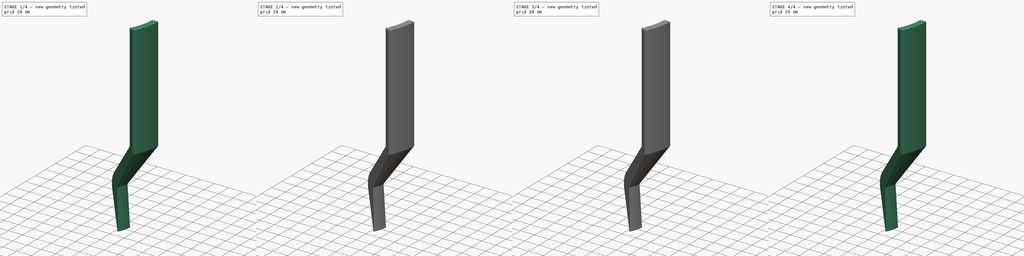
[diagram: build sequence overview — one tinted view per stage of 4, left to right]
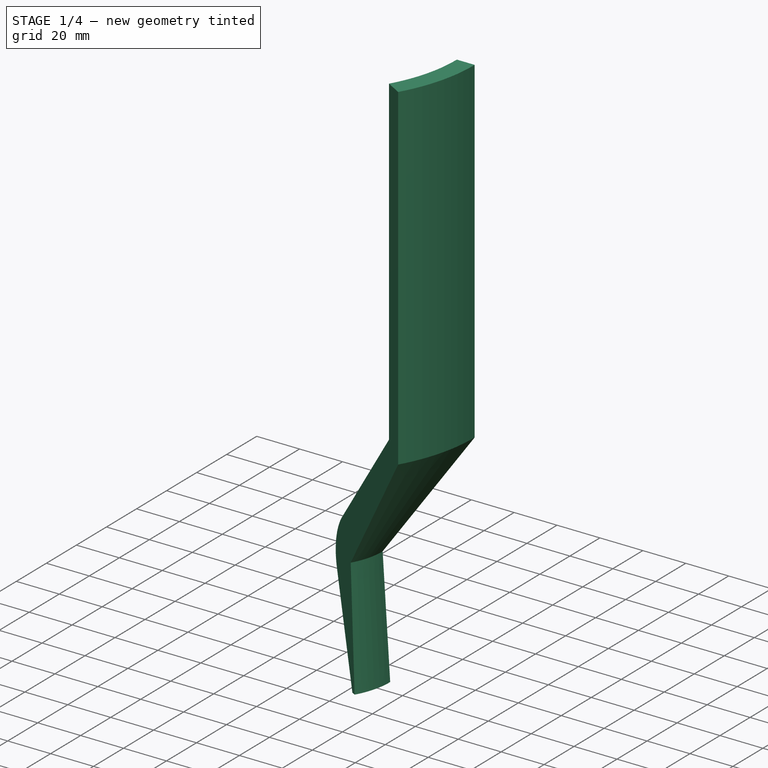
[diagram: stage 1 of 4 — iso view after this stage's code; geometry added in this stage tinted green]
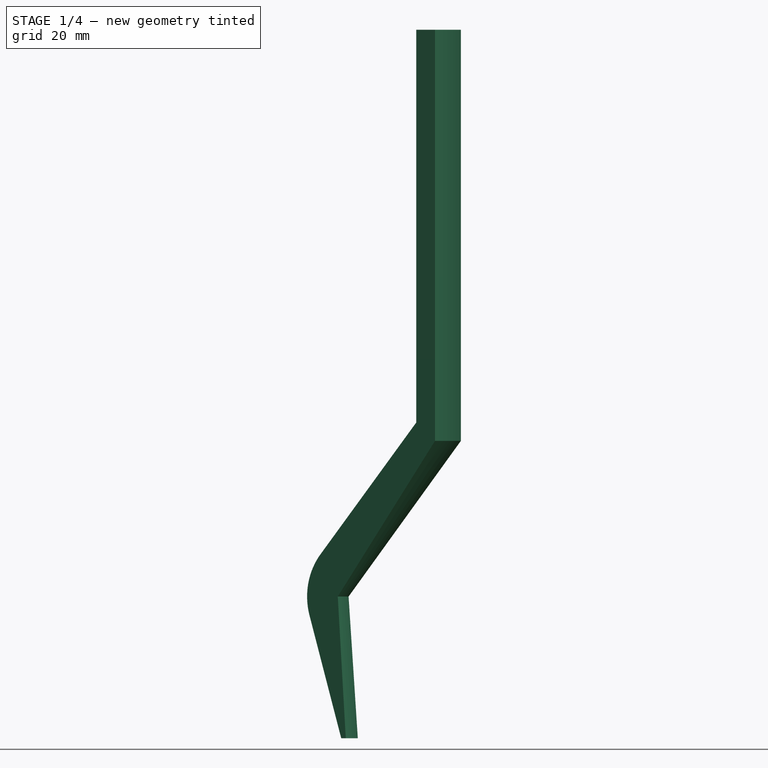
[diagram: stage 1 of 4 — front view after this stage's code; geometry added in this stage tinted green]
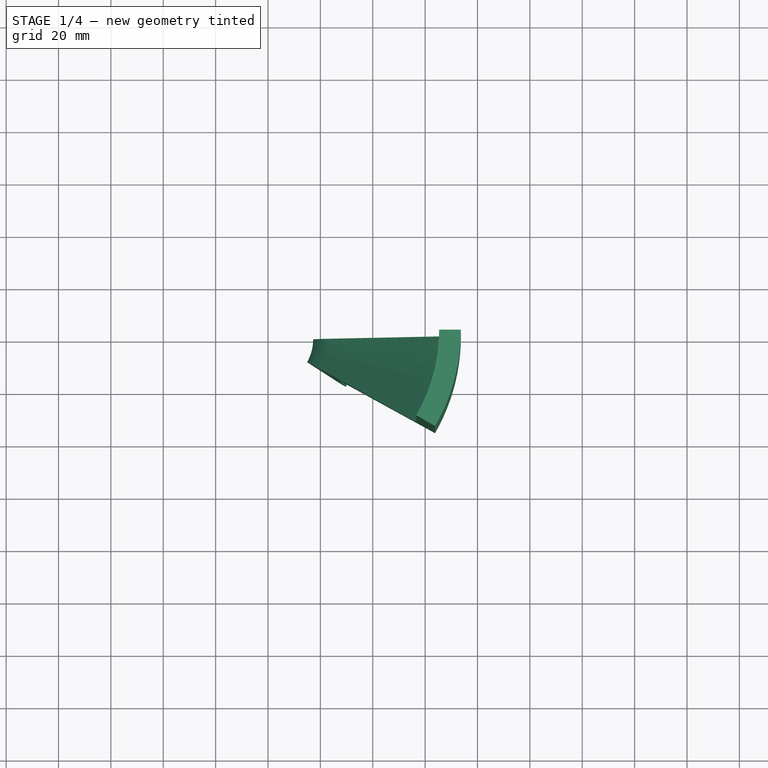
[diagram: stage 1 of 4 — top view after this stage's code; geometry added in this stage tinted green]
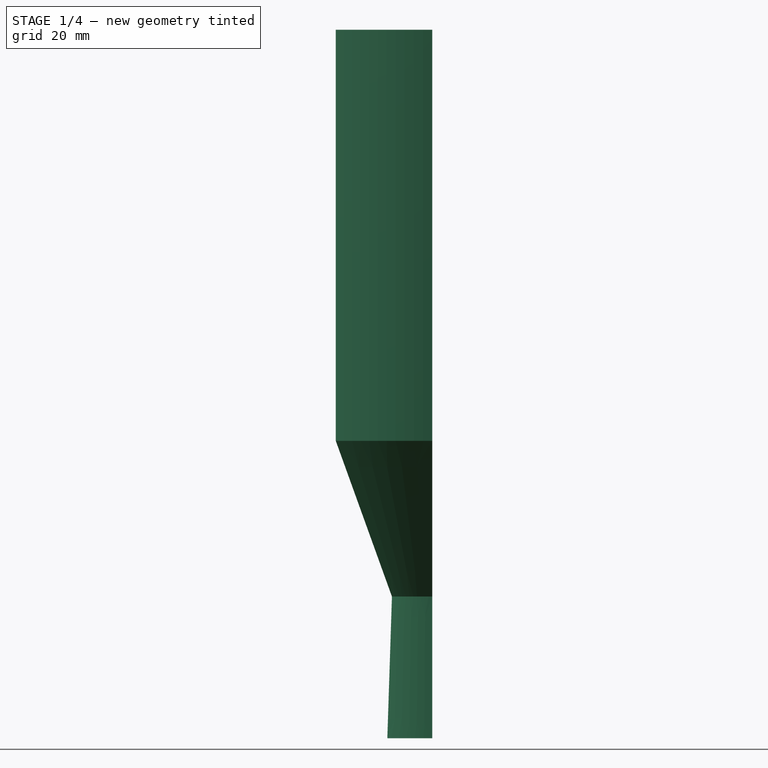
[diagram: stage 1 of 4 — right view after this stage's code; geometry added in this stage tinted green]
FCSTD DOCUMENT  (FreeCAD 1.0R39109 (Git))
Label: mlaznicaCFD
License: All rights reserved
LicenseURL: https://en.wikipedia.org/wiki/All_rights_reserved
objects: Sketcher::SketchObject×9, PartDesign::Groove×6, PartDesign::Plane×4, PartDesign::Revolution×3, PartDesign::Body×3, Spreadsheet::Sheet×1, PartDesign::Boolean×1
note: 54 computed .brp shape members not serialized (recipe doc carries the construction recipe); baked Part::Feature solids carry a one-line shape summary decoded from their .brp

FEATURE [PartDesign::Body] Body  label="volume-solid"
  AllowCompound = false
  Group = -> [Sketch,Revolution,DatumPlane,Sketch001,Groove,DatumPlane001,Sketch002,Groove001,Sketch004,Groove002]
  Origin = -> Origin
  Tip = -> Groove002
FEATURE [PartDesign::Plane] DatumPlane002
  AttachmentOffset = pos=(0,0,0) rot=(0,-1,0;0.054223rad)
  AttachmentSupport = -> [XZ_Plane001]
  Length = 62.8966
  MapMode = 5
  Placement = pos=(0,0,0) rot=(0.999265,-0.027098,-0.027098;1.57153rad)
  ResizeMode = 0
  Width = 60.2602
  expr: .AttachmentOffset.Rotation.Pitch = -Spreadsheet.C15 / 2
FEATURE [PartDesign::Plane] DatumPlane003
  AttachmentOffset = pos=(0,0,0) rot=(0,-1,0;0.316023rad)
  AttachmentSupport = -> [XZ_Plane001]
  Length = 74.294
  MapMode = 5
  Placement = pos=(0,0,0) rot=(0.975539,-0.155442,-0.155442;1.59556rad)
  ResizeMode = 0
  Width = 61.2306
  expr: .AttachmentOffset.Rotation.Pitch = -(Spreadsheet.C15 / 2 + Spreadsheet.C15 + Spreadsheet.C16)
FEATURE [Sketcher::SketchObject] Sketch005
  ArcFitTolerance = 1e-06
  AttachmentSupport = -> [XZ_Plane001]
  FullyConstrained = true
  MakeInternals = false
  MapMode = 5
  Placement = pos=(0,0,0) rot=(1,0,0;1.5708rad)
  expr: Constraints[18] = Spreadsheet.vanjski_promjer
  expr: Constraints[1] = Spreadsheet.promjer_grla_mlaznice
  expr: Constraints[22] = Spreadsheet.vanjski_promjer_grlo
  expr: Constraints[6] = Spreadsheet.unutarnji_promjer_komora
  sketch-geometry (10):
    g0: ArcOfCircle CenterX=42.2423 CenterY=54.12 CenterZ=0 NormalX=0 NormalY=0 NormalZ=1 AngleXU=0 Radius=25 StartAngle=2.44346 EndAngle=3.43132
    g1: LineSegment StartX=18.2843 StartY=46.9778 StartZ=0 EndX=32.2889 EndY=0 EndZ=0
    g2: LineSegment StartX=23.0912 StartY=70.1897 StartZ=0 EndX=65.3481 EndY=120.55 EndZ=0
    g3: LineSegment StartX=65.3481 StartY=120.55 StartZ=0 EndX=65.3481 EndY=270.55 EndZ=0
    g4: LineSegment StartX=65.3481 StartY=270.55 StartZ=0 EndX=73.6538 EndY=270.55 EndZ=0
    g5: LineSegment StartX=73.6538 StartY=270.55 StartZ=0 EndX=73.6538 EndY=113.58 EndZ=0
    g6: LineSegment [constr] StartX=65.3481 StartY=120.55 StartZ=0 EndX=73.6538 EndY=113.58 EndZ=0
    g7: LineSegment StartX=73.6538 StartY=113.58 StartZ=0 EndX=30.7669 EndY=54.12 EndZ=0
    g8: LineSegment StartX=30.7669 StartY=54.12 StartZ=0 EndX=34.2889 EndY=0 EndZ=0
    g9: LineSegment StartX=34.2889 StartY=0 StartZ=0 EndX=32.2889 EndY=0 EndZ=0
  constraints (28):
    c: Diameter(g0) = 50
    c: Distance(g0,g-2) = 17.2423
    c: Distance(g0,g-1) = 54.12
    c: Angle(g-2,g1) = 0.289725
    c: PointOnObject(g1,g-1)
    c: Angle(g2,g-2) = 0.698132
    c: DistanceX(g-1,g2) = 65.3481
    c: Tangent(g0,g1) = -1.5708
    c: Tangent(g0,g2) = 1.5708
    c: Coincident(g3,g2)
    c: Vertical(g3)
    c: Coincident(g4,g3)
    c: Horizontal(g4)
    c: Coincident(g5,g4)
    c: Vertical(g5)
    c: DistanceY(g3,g3) = 150
    c: Coincident(g6,g2)
    c: Perpendicular(g6,g2)
    c: Distance(g-2,g5) = 73.6538
    c: Coincident(g5,g6)
    c: Coincident(g7,g5)
    c: Distance(g7,g-1) = 54.12
    c: DistanceX(g-1,g7) = 30.7669
    c: Coincident(g8,g7)
    c: PointOnObject(g8,g-1)
    c: Coincident(g9,g8)
    c: Coincident(g9,g1)
    c: DistanceX(g9,g9) = 2
FEATURE [PartDesign::Revolution] Revolution001
  Angle = 30
  Angle2 = 60
  Axis = (0,2e-16,1)
  Base = (0,0,0)
  Placement = pos=(0,0,0) rot=(1,0,0;1.5708rad)
  Profile = -> Sketch005
  ReferenceAxis = -> Sketch005 [V_Axis]
  Refine = true
  Reversed = true
  Suppressed = false
  Type = 0
  expr: Angle = Spreadsheet.deg_grlo
FEATURE [PartDesign::Body] Body001
  AllowCompound = false
  Group = -> [Sketch005,Revolution001,DatumPlane002,Sketch006,Groove003,DatumPlane003,Sketch007,Groove004,Sketch008,Groove005]
  Origin = -> Origin001
  Tip = -> Groove005
FEATURE [Sketcher::SketchObject] Sketch009
  ArcFitTolerance = 1e-06
  AttachmentSupport = -> [XZ_Plane002]
  FullyConstrained = true
  MakeInternals = false
  MapMode = 5
  Placement = pos=(0,0,0) rot=(1,0,0;1.5708rad)
  expr: Constraints[18] = Spreadsheet.vanjski_promjer
  expr: Constraints[1] = Spreadsheet.promjer_grla_mlaznice
  expr: Constraints[22] = Spreadsheet.vanjski_promjer_grlo
  expr: Constraints[6] = Spreadsheet.unutarnji_promjer_komora
  sketch-geometry (10):
    g0: ArcOfCircle CenterX=42.2423 CenterY=54.12 CenterZ=0 NormalX=0 NormalY=0 NormalZ=1 AngleXU=0 Radius=25 StartAngle=2.44346 EndAngle=3.43132
    g1: LineSegment StartX=18.2843 StartY=46.9778 StartZ=0 EndX=32.2889 EndY=0 EndZ=0
    g2: LineSegment StartX=23.0912 StartY=70.1897 StartZ=0 EndX=65.3481 EndY=120.55 EndZ=0
    g3: LineSegment StartX=65.3481 StartY=120.55 StartZ=0 EndX=65.3481 EndY=270.55 EndZ=0
    g4: LineSegment StartX=65.3481 StartY=270.55 StartZ=0 EndX=73.6538 EndY=270.55 EndZ=0
    g5: LineSegment StartX=73.6538 StartY=270.55 StartZ=0 EndX=73.6538 EndY=113.58 EndZ=0
    g6: LineSegment [constr] StartX=65.3481 StartY=120.55 StartZ=0 EndX=73.6538 EndY=113.58 EndZ=0
    g7: LineSegment StartX=73.6538 StartY=113.58 StartZ=0 EndX=30.7669 EndY=54.12 EndZ=0
    g8: LineSegment StartX=30.7669 StartY=54.12 StartZ=0 EndX=34.2889 EndY=0 EndZ=0
    g9: LineSegment StartX=34.2889 StartY=0 StartZ=0 EndX=32.2889 EndY=0 EndZ=0
  constraints (28):
    c: Diameter(g0) = 50
    c: Distance(g0,g-2) = 17.2423
    c: Distance(g0,g-1) = 54.12
    c: Angle(g-2,g1) = 0.289725
    c: PointOnObject(g1,g-1)
    c: Angle(g2,g-2) = 0.698132
    c: DistanceX(g-1,g2) = 65.3481
    c: Tangent(g0,g1) = -1.5708
    c: Tangent(g0,g2) = 1.5708
    c: Coincident(g3,g2)
    c: Vertical(g3)
    c: Coincident(g4,g3)
    c: Horizontal(g4)
    c: Coincident(g5,g4)
    c: Vertical(g5)
    c: DistanceY(g3,g3) = 150
    c: Coincident(g6,g2)
    c: Perpendicular(g6,g2)
    c: Distance(g-2,g5) = 73.6538
    c: Coincident(g5,g6)
    c: Coincident(g7,g5)
    c: Distance(g7,g-1) = 54.12
    c: DistanceX(g-1,g7) = 30.7669
    c: Coincident(g8,g7)
    c: PointOnObject(g8,g-1)
    c: Coincident(g9,g8)
    c: Coincident(g9,g1)
    c: DistanceX(g9,g9) = 2
FEATURE [PartDesign::Revolution] Revolution002
  Angle = 30
  Angle2 = 60
  Axis = (0,2e-16,1)
  Base = (0,0,0)
  Placement = pos=(0,0,0) rot=(1,0,0;1.5708rad)
  Profile = -> Sketch009
  ReferenceAxis = -> Sketch009 [V_Axis]
  Refine = true
  Reversed = true
  Suppressed = false
  Type = 0
  expr: Angle = Spreadsheet.deg_grlo
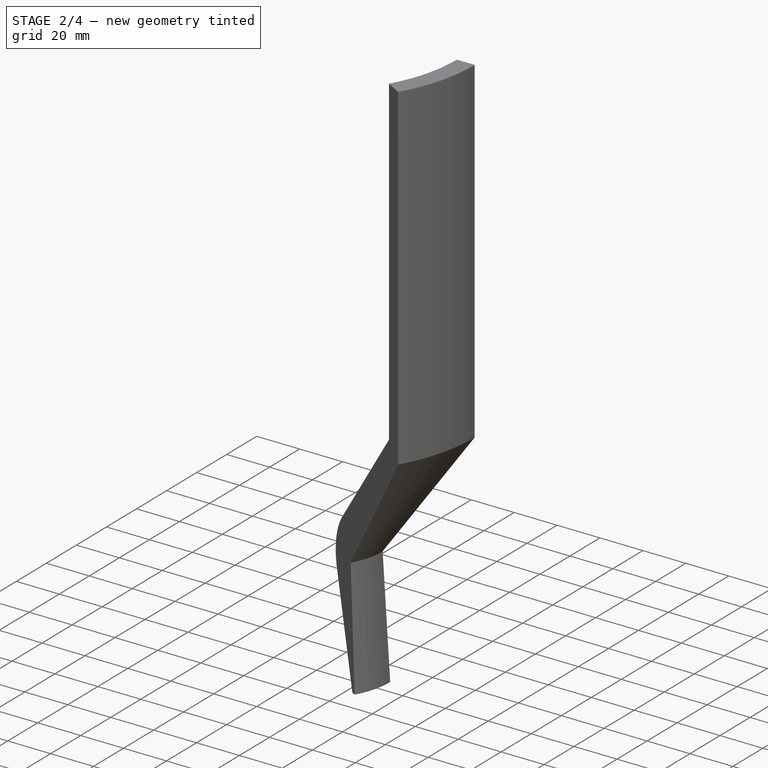
[diagram: stage 2 of 4 — iso view after this stage's code; geometry added in this stage tinted green]
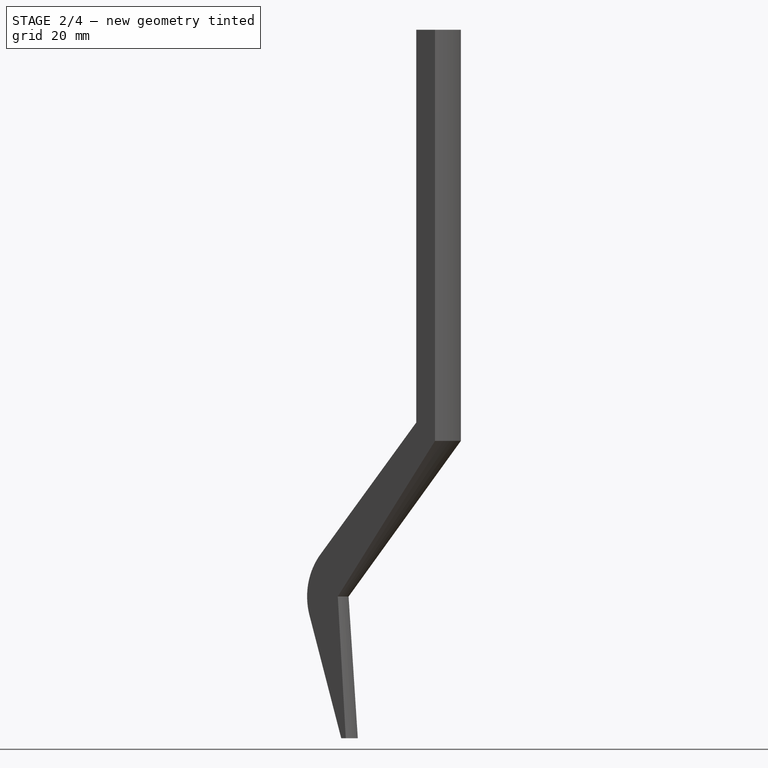
[diagram: stage 2 of 4 — front view after this stage's code; geometry added in this stage tinted green]
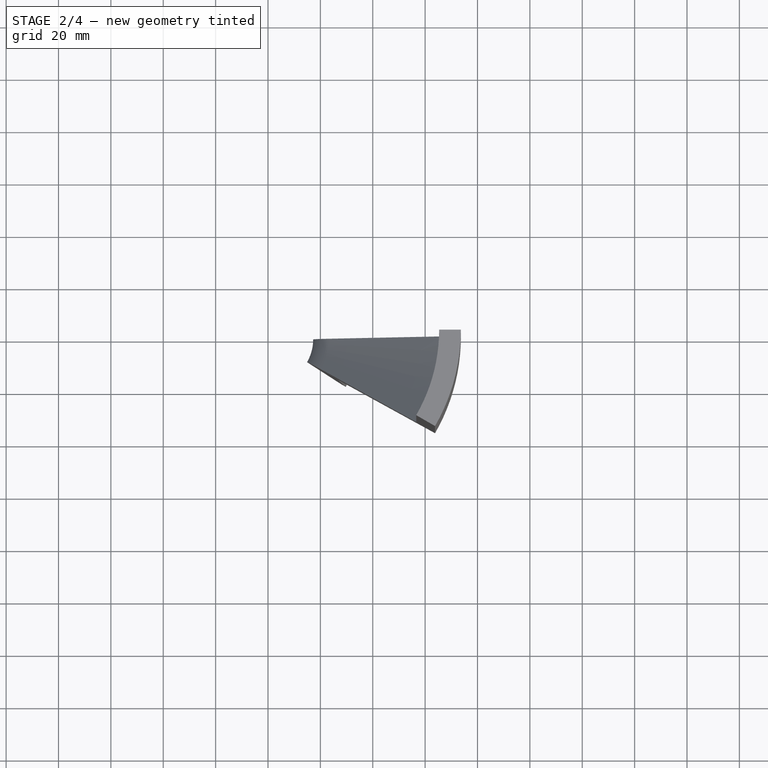
[diagram: stage 2 of 4 — top view after this stage's code; geometry added in this stage tinted green]
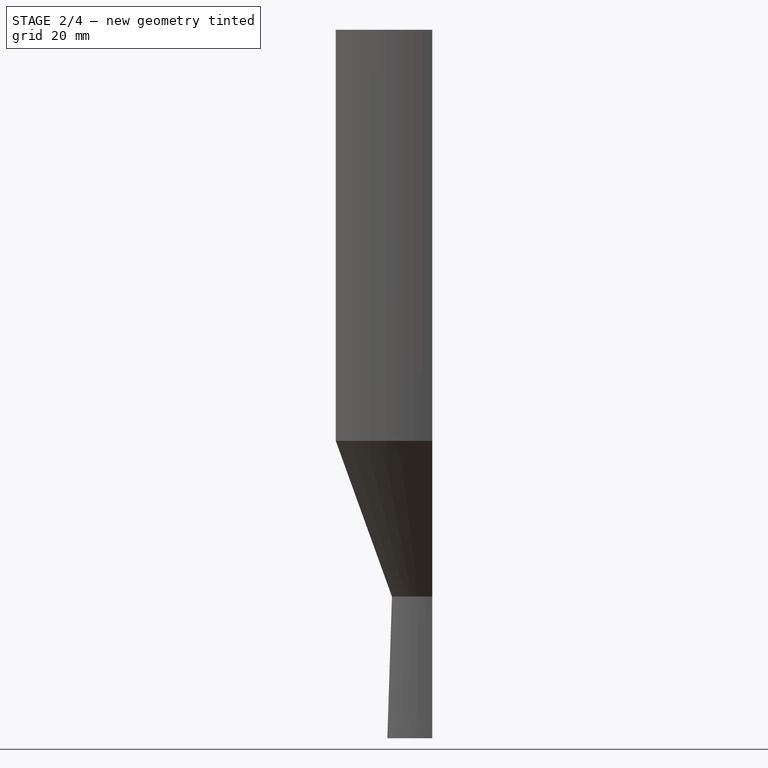
[diagram: stage 2 of 4 — right view after this stage's code; geometry added in this stage tinted green]
FEATURE [Sketcher::SketchObject] Sketch006
  ArcFitTolerance = 1e-06
  AttachmentSupport = -> [DatumPlane002]
  FullyConstrained = false
  MakeInternals = false
  MapMode = 5
  Placement = pos=(0,0,0) rot=(0.999265,-0.027098,-0.027098;1.57153rad)
  expr: Constraints[16] = Spreadsheet.C11
  expr: Constraints[21] = Spreadsheet.C10
  expr: Constraints[24] = Spreadsheet.unutarnji_promjer_komora
  expr: Constraints[7] = Spreadsheet.C4
  expr: Constraints[8] = Spreadsheet.C3
  expr: Constraints[9] = 50 - 2 * (Spreadsheet.C10 - Spreadsheet.C9)
  sketch-geometry (11):
    g0: LineSegment StartX=70.7638 StartY=333 StartZ=0 EndX=70.7638 EndY=123.405 EndZ=0
    g1: LineSegment StartX=70.7638 StartY=333 StartZ=0 EndX=66.8881 EndY=333 EndZ=0
    g2: LineSegment StartX=66.8881 StartY=333 StartZ=0 EndX=66.8881 EndY=126.328 EndZ=0
    g3: ArcOfCircle CenterX=42.2423 CenterY=54.12 CenterZ=0 NormalX=0 NormalY=0 NormalZ=1 AngleXU=0 Radius=23.8 StartAngle=2.49544 EndAngle=3.14159
    g4: LineSegment StartX=70.7638 StartY=123.405 StartZ=0 EndX=29.5569 EndY=54.12 EndZ=0
    g5: LineSegment StartX=66.8881 StartY=126.328 StartZ=0 EndX=23.2402 EndY=68.4503 EndZ=0
    g6: LineSegment [constr] StartX=66.8881 StartY=126.328 StartZ=0 EndX=70.7638 EndY=123.405 EndZ=0
    g7: LineSegment StartX=29.5569 StartY=54.12 StartZ=0 EndX=18.4423 EndY=54.12 EndZ=0
    g8: LineSegment [constr] StartX=65.3481 StartY=277.62 StartZ=0 EndX=65.3481 EndY=127.62 EndZ=0
    g9: LineSegment [constr] StartX=65.3481 StartY=127.62 StartZ=0 EndX=41.635 EndY=99.3598 EndZ=0
    g10: LineSegment [constr] StartX=65.3481 StartY=127.62 StartZ=0 EndX=80.0046 EndY=115.322 EndZ=0
  constraints (32):
    c: Vertical(g0)
    c: Coincident(g1,g0)
    c: Horizontal(g1)
    c: Coincident(g2,g1)
    c: Vertical(g2)
    c: Coincident(g4,g0)
    c: Coincident(g5,g2)
    c: Distance(g-2,g2) = 66.8881
    c: Distance(g-2,g0) = 70.7638
    c: Diameter(g3) = 47.6
    c: Distance(g3,g-1) = 54.12
    c: DistanceY(g-1,g4) = 54.12
    c: Coincident(g6,g2)
    c: Perpendicular(g5,g6)
    c: PointOnObject(g0,g6)
    c: PointOnObject(g6,g4)
    c: DistanceX(g-1,g4) = 29.5569
    c: Coincident(g7,g4)
    c: Horizontal(g7)
    c: Tangent(g3,g5) = -1.5708
    c: Coincident(g3,g7)
    c: Distance(g3,g-2) = 18.4423
    c: Vertical(g8)
    c: DistanceY(g-1,g8) = 277.62
    c: Distance(g-2,g8) = 65.3481
    c: DistanceY(g8,g8) = 150
    c: Coincident(g9,g8)
    c: Angle(g9,g-2) = 0.698132
    c: Coincident(g10,g8)
    c: Perpendicular(g9,g10)
    c: PointOnObject(g2,g10)
    c: Distance(g-1,g1) = 333
FEATURE [PartDesign::Groove] Groove003
  Angle = 8.78649
  Angle2 = 60
  Axis = (0,-2e-16,1)
  Base = (0,0,0)
  BaseFeature = -> Revolution001
  Placement = pos=(0,0,0) rot=(1,0,0;1.5708rad)
  Profile = -> Sketch006
  ReferenceAxis = -> Sketch006 [V_Axis]
  Refine = true
  Reversed = true
  Suppressed = false
  Type = 0
  expr: Angle = Spreadsheet.C16
FEATURE [Sketcher::SketchObject] Sketch007
  ArcFitTolerance = 1e-06
  AttachmentSupport = -> [DatumPlane003]
  FullyConstrained = false
  MakeInternals = false
  MapMode = 5
  Placement = pos=(0,0,0) rot=(0.975539,-0.155442,-0.155442;1.59556rad)
  expr: Constraints[12] = 50 - 2 * (Spreadsheet.C10 - Spreadsheet.C9)
  expr: Constraints[13] = Spreadsheet.C11
  expr: Constraints[14] = Spreadsheet.C4
  expr: Constraints[15] = Spreadsheet.C3
  expr: Constraints[20] = Spreadsheet.C10
  expr: Constraints[22] = Spreadsheet.C5
  expr: Constraints[32] = Spreadsheet.C9
  sketch-geometry (14):
    g0: ArcOfCircle CenterX=42.2423 CenterY=54.12 CenterZ=0 NormalX=0 NormalY=0 NormalZ=1 AngleXU=0 Radius=23.8 StartAngle=2.49544 EndAngle=3.14159
    g1: LineSegment StartX=23.2402 StartY=68.4503 StartZ=0 EndX=66.8881 EndY=126.328 EndZ=0
    g2: LineSegment StartX=66.8881 StartY=126.328 StartZ=0 EndX=66.8881 EndY=333 EndZ=0
    g3: LineSegment StartX=66.8881 StartY=333 StartZ=0 EndX=70.7638 EndY=333 EndZ=0
    g4: LineSegment StartX=70.7638 StartY=333 StartZ=0 EndX=70.7638 EndY=123.405 EndZ=0
    g5: LineSegment StartX=70.7638 StartY=123.405 StartZ=0 EndX=29.5569 EndY=54.12 EndZ=0
    g6: LineSegment [constr] StartX=66.8881 StartY=126.328 StartZ=0 EndX=70.7638 EndY=123.405 EndZ=0
    g7: LineSegment StartX=29.5569 StartY=54.12 StartZ=0 EndX=18.4423 EndY=54.12 EndZ=0
    g8: LineSegment [constr] StartX=65.3481 StartY=277.62 StartZ=0 EndX=65.3481 EndY=127.62 EndZ=0
    g9: LineSegment [constr] StartX=65.3481 StartY=127.62 StartZ=0 EndX=48.5294 EndY=107.576 EndZ=0
    g10: LineSegment [constr] StartX=65.3481 StartY=127.62 StartZ=0 EndX=86.376 EndY=109.975 EndZ=0
    g11: ArcOfCircle [constr] CenterX=42.2423 CenterY=54.12 CenterZ=0 NormalX=0 NormalY=0 NormalZ=1 AngleXU=0 Radius=25 StartAngle=2.49544 EndAngle=8.46754
    g12: LineSegment [constr] StartX=23.2402 StartY=68.4503 StartZ=0 EndX=22.2821 EndY=69.1729 EndZ=0
    g13: LineSegment [constr] StartX=18.4423 StartY=54.12 StartZ=0 EndX=17.2423 EndY=54.12 EndZ=0
  constraints (41):
    c: Coincident(g2,g1)
    c: Vertical(g2)
    c: Coincident(g3,g2)
    c: Horizontal(g3)
    c: Coincident(g4,g3)
    c: Vertical(g4)
    c: Coincident(g5,g4)
    c: Coincident(g6,g1)
    c: Perpendicular(g1,g6)
    c: Coincident(g6,g4)
    c: DistanceY(g-1,g0) = 54.12
    c: DistanceY(g-1,g5) = 54.12
    c: Diameter(g0) = 47.6
    c: DistanceX(g-1,g5) = 29.5569
    c: Distance(g-2,g2) = 66.8881
    c: Distance(g-2,g4) = 70.7638
    c: Coincident(g7,g5)
    c: Horizontal(g7)
    c: Coincident(g0,g7)
    c: Tangent(g0,g1) = 1.5708
    c: Distance(g0,g-2) = 18.4423
    c: Vertical(g8)
    c: Distance(g-2,g8) = 65.3481
    c: DistanceY(g-1,g8) = 277.62
    c: DistanceY(g8,g8) = 150
    c: Distance(g-1,g3) = 333
    c: Coincident(g9,g8)
    c: Angle(g9,g-2) = 0.698132
    c: Coincident(g10,g8)
    c: Perpendicular(g10,g9)
    c: PointOnObject(g1,g10)
    c: DistanceY(g-1,g11) = 54.12
    c: Distance(g11,g-2) = 17.2423
    c: Diameter(g11) = 50
    c: Coincident(g12,g0)
    c: Perpendicular(g12,g1)
    c: PointOnObject(g11,g1)
    c: Coincident(g12,g11)
    c: Coincident(g13,g0)
    c: Horizontal(g13)
    c: PointOnObject(g13,g11)
FEATURE [PartDesign::Groove] Groove004
  Angle = 8.78649
  Angle2 = 60
  Axis = (0,0,1)
  Base = (0,0,0)
  BaseFeature = -> Groove003
  Placement = pos=(0,0,0) rot=(1,0,0;1.5708rad)
  Profile = -> Sketch007
  ReferenceAxis = -> Sketch007 [V_Axis]
  Refine = true
  Reversed = true
  Suppressed = false
  Type = 0
  expr: Angle = Spreadsheet.C17
FEATURE [Sketcher::SketchObject] Sketch008
  ArcFitTolerance = 1e-06
  AttachmentSupport = -> [DatumPlane003]
  FullyConstrained = false
  MakeInternals = false
  MapMode = 5
  Placement = pos=(0,0,0) rot=(0.975539,-0.155442,-0.155442;1.59556rad)
  expr: Constraints[0] = 50 - 2 * (Spreadsheet.C10 - Spreadsheet.C9)
  expr: Constraints[12] = Spreadsheet.C3
  expr: Constraints[13] = Spreadsheet.C10
  expr: Constraints[21] = Spreadsheet.C3
  expr: Constraints[22] = Spreadsheet.C4
  expr: Constraints[28] = Spreadsheet.C19
  expr: Constraints[3] = Spreadsheet.C11
  expr: Constraints[9] = Spreadsheet.C5
  sketch-geometry (9):
    g0: ArcOfCircle CenterX=42.2423 CenterY=54.12 CenterZ=0 NormalX=0 NormalY=0 NormalZ=1 AngleXU=0 Radius=23.8 StartAngle=2.9075 EndAngle=3.14159
    g1: LineSegment StartX=29.5569 StartY=54.12 StartZ=0 EndX=32.8559 EndY=59.6406 EndZ=0
    g2: LineSegment [constr] StartX=65.3481 StartY=277.62 StartZ=0 EndX=65.3481 EndY=127.62 EndZ=0
    g3: LineSegment [constr] StartX=65.3481 StartY=127.62 StartZ=0 EndX=47.0094 EndY=105.765 EndZ=0
    g4: LineSegment [constr] StartX=65.3481 StartY=127.62 StartZ=0 EndX=70.7638 EndY=123.076 EndZ=0
    g5: LineSegment StartX=29.5569 StartY=54.12 StartZ=0 EndX=18.4423 EndY=54.12 EndZ=0
    g6: LineSegment [constr] StartX=16.6753 StartY=59.7453 StartZ=0 EndX=66.8881 EndY=126.328 EndZ=0
    g7: LineSegment [constr] StartX=70.7638 StartY=123.076 StartZ=0 EndX=29.5569 EndY=54.12 EndZ=0
    g8: LineSegment StartX=19.0914 StartY=59.6406 StartZ=0 EndX=32.8559 EndY=59.6406 EndZ=0
  constraints (29):
    c: Diameter(g0) = 47.6
    c: DistanceY(g-1,g0) = 54.12
    c: DistanceY(g-1,g1) = 54.12
    c: Distance(g1,g-2) = 29.5569
    c: Vertical(g2)
    c: Coincident(g3,g2)
    c: DistanceY(g-1,g2) = 277.62
    c: DistanceY(g2,g2) = 150
    c: Angle(g3,g-2) = 0.698132
    c: Distance(g-2,g2) = 65.3481
    c: Coincident(g4,g2)
    c: Perpendicular(g3,g4)
    c: Distance(g4,g-2) = 70.7638
    c: Distance(g0,g-2) = 18.4423
    c: Coincident(g5,g1)
    c: Coincident(g5,g0)
    c: Horizontal(g5)
    c: Distance(g3,g3) = 28.53
    c: PointOnObject(g6,g4)
    c: PointOnObject(g7,g4)
    c: Coincident(g7,g1)
    c: DistanceX(g-1,g7) = 70.7638
    c: DistanceX(g-1,g6) = 66.8881
    c: Tangent(g0,g6)
    c: Parallel(g7,g1)
    c: Horizontal(g8)
    c: Coincident(g8,g1)
    c: Coincident(g8,g0)
    c: Distance(g5,g8) = 5.52062
FEATURE [PartDesign::Groove] Groove005
  Angle = 6.21351
  Angle2 = 60
  Axis = (0,0,1)
  Base = (0,0,0)
  BaseFeature = -> Groove004
  Placement = pos=(0,0,0) rot=(1,0,0;1.5708rad)
  Profile = -> Sketch008
  ReferenceAxis = -> Sketch008 [V_Axis]
  Refine = true
  Suppressed = false
  Type = 0
  expr: Angle = Spreadsheet.C15
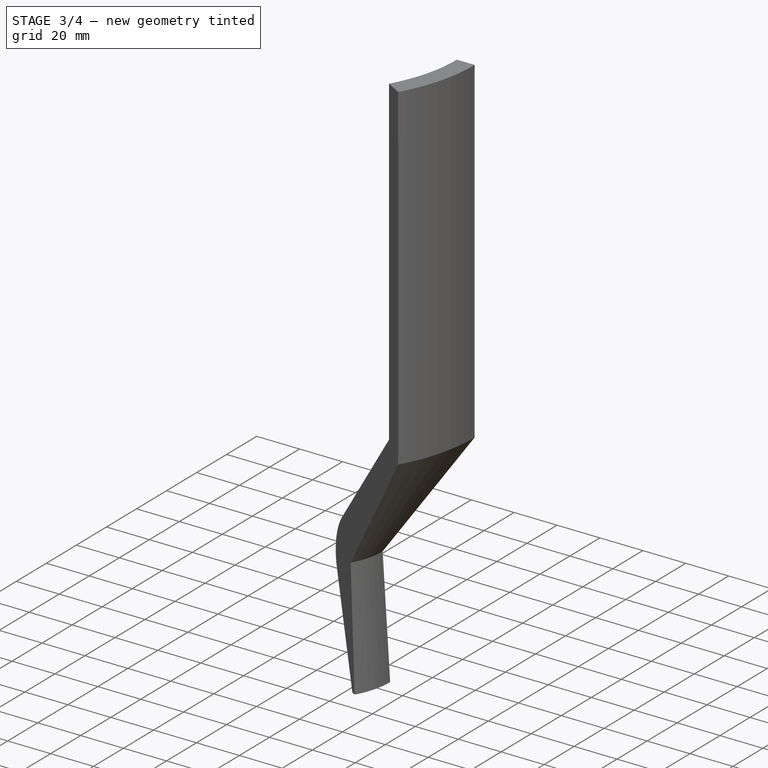
[diagram: stage 3 of 4 — iso view after this stage's code; geometry added in this stage tinted green]
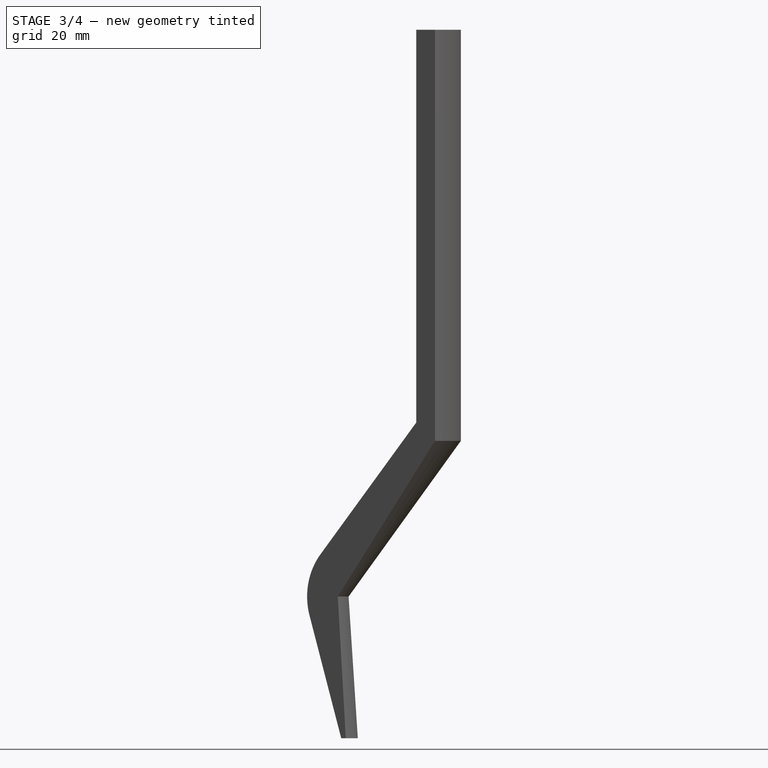
[diagram: stage 3 of 4 — front view after this stage's code; geometry added in this stage tinted green]
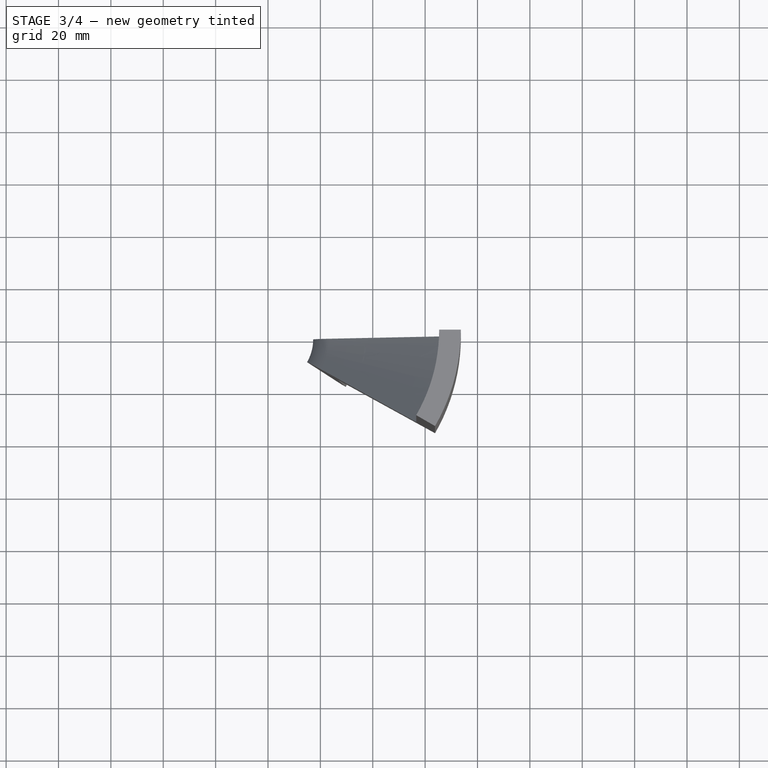
[diagram: stage 3 of 4 — top view after this stage's code; geometry added in this stage tinted green]
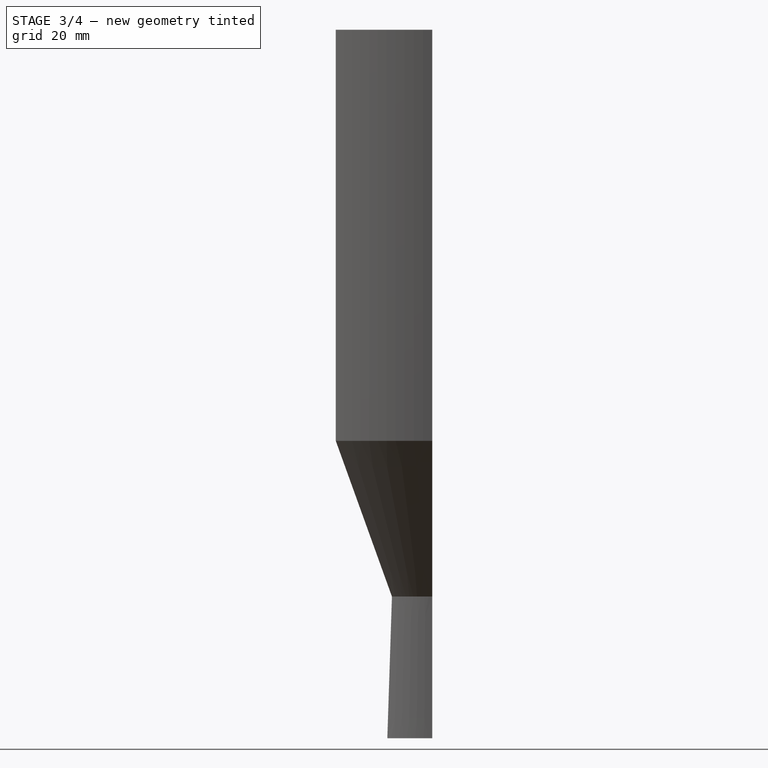
[diagram: stage 3 of 4 — right view after this stage's code; geometry added in this stage tinted green]
FEATURE [Sketcher::SketchObject] Sketch
  ArcFitTolerance = 1e-06
  AttachmentSupport = -> [XZ_Plane]
  FullyConstrained = true
  MakeInternals = false
  MapMode = 5
  Placement = pos=(0,0,0) rot=(1,0,0;1.5708rad)
  expr: Constraints[18] = Spreadsheet.vanjski_promjer
  expr: Constraints[1] = Spreadsheet.promjer_grla_mlaznice
  expr: Constraints[22] = Spreadsheet.vanjski_promjer_grlo
  expr: Constraints[6] = Spreadsheet.unutarnji_promjer_komora
  sketch-geometry (10):
    g0: ArcOfCircle CenterX=42.2423 CenterY=54.12 CenterZ=0 NormalX=0 NormalY=0 NormalZ=1 AngleXU=0 Radius=25 StartAngle=2.44346 EndAngle=3.43132
    g1: LineSegment StartX=18.2843 StartY=46.9778 StartZ=0 EndX=32.2889 EndY=0 EndZ=0
    g2: LineSegment StartX=23.0912 StartY=70.1897 StartZ=0 EndX=65.3481 EndY=120.55 EndZ=0
    g3: LineSegment StartX=65.3481 StartY=120.55 StartZ=0 EndX=65.3481 EndY=270.55 EndZ=0
    g4: LineSegment StartX=65.3481 StartY=270.55 StartZ=0 EndX=73.6538 EndY=270.55 EndZ=0
    g5: LineSegment StartX=73.6538 StartY=270.55 StartZ=0 EndX=73.6538 EndY=113.58 EndZ=0
    g6: LineSegment [constr] StartX=65.3481 StartY=120.55 StartZ=0 EndX=73.6538 EndY=113.58 EndZ=0
    g7: LineSegment StartX=73.6538 StartY=113.58 StartZ=0 EndX=30.7669 EndY=54.12 EndZ=0
    g8: LineSegment StartX=30.7669 StartY=54.12 StartZ=0 EndX=34.2889 EndY=0 EndZ=0
    g9: LineSegment StartX=34.2889 StartY=0 StartZ=0 EndX=32.2889 EndY=0 EndZ=0
  constraints (28):
    c: Diameter(g0) = 50
    c: Distance(g0,g-2) = 17.2423
    c: Distance(g0,g-1) = 54.12
    c: Angle(g-2,g1) = 0.289725
    c: PointOnObject(g1,g-1)
    c: Angle(g2,g-2) = 0.698132
    c: DistanceX(g-1,g2) = 65.3481
    c: Tangent(g0,g1) = -1.5708
    c: Tangent(g0,g2) = 1.5708
    c: Coincident(g3,g2)
    c: Vertical(g3)
    c: Coincident(g4,g3)
    c: Horizontal(g4)
    c: Coincident(g5,g4)
    c: Vertical(g5)
    c: DistanceY(g3,g3) = 150
    c: Coincident(g6,g2)
    c: Perpendicular(g6,g2)
    c: Distance(g-2,g5) = 73.6538
    c: Coincident(g5,g6)
    c: Coincident(g7,g5)
    c: Distance(g7,g-1) = 54.12
    c: DistanceX(g-1,g7) = 30.7669
    c: Coincident(g8,g7)
    c: PointOnObject(g8,g-1)
    c: Coincident(g9,g8)
    c: Coincident(g9,g1)
    c: DistanceX(g9,g9) = 2
FEATURE [Spreadsheet::Sheet] Spreadsheet
  cells = B1='dizajn komore; A2=147.307500414543; B2='D_inlet; C2(vanjski_promjer)==A2 / 2; A3=141.527500414543; B3='D_ulaz_mlaznice; C3(D_ulaz_mlaznice)==A3 / 2; A4=133.776211869789; B4='d_cooling_channels_inlet; C4(d_ulaz_mlaznice)==A4 / 2; A5=130.696211869789; B5='combustion_chamber_diameter; C5(unutarnji_promjer_komora)==A5 / 2; B8='dizajn grla; A9=34.4846319627967; B9='promjer_grla_mlaznice; C9(promjer_grla_mlaznice)==A9 / 2; A10=36.8846319627967; B10='d_cooling_channels_throat; C10(unutarnja_stjenka_rashladnih_kanala)==A10 / 2; A11=59.1137427878577; B11='D_cooling_channels_throat; C11(d_vani_grlo)==A11 / 2; A12=61.5337427878577; B12='D_throat; C12(vanjski_promjer_grlo)==A12 / 2; B14='fi_revolve; C14(deg_grlo)=30; B15='fi_alu_stupnjevi; C15(fi_alu_stupnjevi_ulaz_mlaznice)=6.21351239951349; B16='fi_inlet_stupnjevi_ulaz; C16(fi_IPA_ulaz_deg)=8.7864876004865; B17='fi_inlet_stupnjevi_izlaz; C17(fi_IPA_izlaz_gore_deg)=8.7864876004865; B19='channel_height; C19=5.52061951540136; B21='nozzle contours; A22=45; B22='CONVERGENT_NOZZLE_ANGLE; A23=16.6; B23='DIVERGENT_NOZZLE_ANGLE; A24=144.835454243746; B24='Combustion_Chamber_Height; A25=43.5617373815162; B25='Divergent_Nozzle_Length; A26=43.1057899534959; B26='Convergent_Nozzle_Length
FEATURE [PartDesign::Revolution] Revolution
  Angle = 30
  Angle2 = 60
  Axis = (0,2e-16,1)
  Base = (0,0,0)
  Placement = pos=(0,0,0) rot=(1,0,0;1.5708rad)
  Profile = -> Sketch
  ReferenceAxis = -> Sketch [V_Axis]
  Refine = true
  Reversed = true
  Suppressed = false
  Type = 0
  expr: Angle = Spreadsheet.deg_grlo
FEATURE [PartDesign::Plane] DatumPlane
  AttachmentOffset = pos=(0,0,0) rot=(0,-1,0;0.054223rad)
  AttachmentSupport = -> [XZ_Plane]
  Length = 136.561
  MapMode = 5
  Placement = pos=(0,0,0) rot=(0.999265,-0.027098,-0.027098;1.57153rad)
  ResizeMode = 0
  Width = 330.251
  expr: .AttachmentOffset.Rotation.Pitch = -Spreadsheet.C15 / 2
FEATURE [Sketcher::SketchObject] Sketch001
  ArcFitTolerance = 1e-06
  AttachmentSupport = -> [DatumPlane]
  FullyConstrained = false
  MakeInternals = false
  MapMode = 5
  Placement = pos=(0,0,0) rot=(0.999265,-0.027098,-0.027098;1.57153rad)
  expr: Constraints[16] = Spreadsheet.C11
  expr: Constraints[21] = Spreadsheet.C10
  expr: Constraints[24] = Spreadsheet.unutarnji_promjer_komora
  expr: Constraints[7] = Spreadsheet.C4
  expr: Constraints[8] = Spreadsheet.C3
  expr: Constraints[9] = 50 - 2 * (Spreadsheet.C10 - Spreadsheet.C9)
  sketch-geometry (11):
    g0: LineSegment StartX=70.7638 StartY=333 StartZ=0 EndX=70.7638 EndY=123.405 EndZ=0
    g1: LineSegment StartX=70.7638 StartY=333 StartZ=0 EndX=66.8881 EndY=333 EndZ=0
    g2: LineSegment StartX=66.8881 StartY=333 StartZ=0 EndX=66.8881 EndY=126.328 EndZ=0
    g3: ArcOfCircle CenterX=42.2423 CenterY=54.12 CenterZ=0 NormalX=0 NormalY=0 NormalZ=1 AngleXU=0 Radius=23.8 StartAngle=2.49544 EndAngle=3.14159
    g4: LineSegment StartX=70.7638 StartY=123.405 StartZ=0 EndX=29.5569 EndY=54.12 EndZ=0
    g5: LineSegment StartX=66.8881 StartY=126.328 StartZ=0 EndX=23.2402 EndY=68.4503 EndZ=0
    g6: LineSegment [constr] StartX=66.8881 StartY=126.328 StartZ=0 EndX=70.7638 EndY=123.405 EndZ=0
    g7: LineSegment StartX=29.5569 StartY=54.12 StartZ=0 EndX=18.4423 EndY=54.12 EndZ=0
    g8: LineSegment [constr] StartX=65.3481 StartY=277.62 StartZ=0 EndX=65.3481 EndY=127.62 EndZ=0
    g9: LineSegment [constr] StartX=65.3481 StartY=127.62 StartZ=0 EndX=41.635 EndY=99.3598 EndZ=0
    g10: LineSegment [constr] StartX=65.3481 StartY=127.62 StartZ=0 EndX=80.0046 EndY=115.322 EndZ=0
  constraints (32):
    c: Vertical(g0)
    c: Coincident(g1,g0)
    c: Horizontal(g1)
    c: Coincident(g2,g1)
    c: Vertical(g2)
    c: Coincident(g4,g0)
    c: Coincident(g5,g2)
    c: Distance(g-2,g2) = 66.8881
    c: Distance(g-2,g0) = 70.7638
    c: Diameter(g3) = 47.6
    c: Distance(g3,g-1) = 54.12
    c: DistanceY(g-1,g4) = 54.12
    c: Coincident(g6,g2)
    c: Perpendicular(g5,g6)
    c: PointOnObject(g0,g6)
    c: PointOnObject(g6,g4)
    c: DistanceX(g-1,g4) = 29.5569
    c: Coincident(g7,g4)
    c: Horizontal(g7)
    c: Tangent(g3,g5) = -1.5708
    c: Coincident(g3,g7)
    c: Distance(g3,g-2) = 18.4423
    c: Vertical(g8)
    c: DistanceY(g-1,g8) = 277.62
    c: Distance(g-2,g8) = 65.3481
    c: DistanceY(g8,g8) = 150
    c: Coincident(g9,g8)
    c: Angle(g9,g-2) = 0.698132
    c: Coincident(g10,g8)
    c: Perpendicular(g9,g10)
    c: PointOnObject(g2,g10)
    c: Distance(g-1,g1) = 333
FEATURE [PartDesign::Groove] Groove
  Angle = 8.78649
  Angle2 = 60
  Axis = (0,-2e-16,1)
  Base = (0,0,0)
  BaseFeature = -> Revolution
  Placement = pos=(0,0,0) rot=(1,0,0;1.5708rad)
  Profile = -> Sketch001
  ReferenceAxis = -> Sketch001 [V_Axis]
  Refine = true
  Reversed = true
  Suppressed = false
  Type = 0
  expr: Angle = Spreadsheet.C16
FEATURE [PartDesign::Boolean] Boolean
  BaseFeature = -> Revolution002
  Group = -> [Body001]
  Refine = true
  Suppressed = false
  Type = 1
  UsePlacement = true
FEATURE [PartDesign::Body] Body002  label="volume-fluid"
  AllowCompound = false
  Group = -> [Revolution002,Sketch009,Boolean]
  Origin = -> Origin002
  Tip = -> Boolean
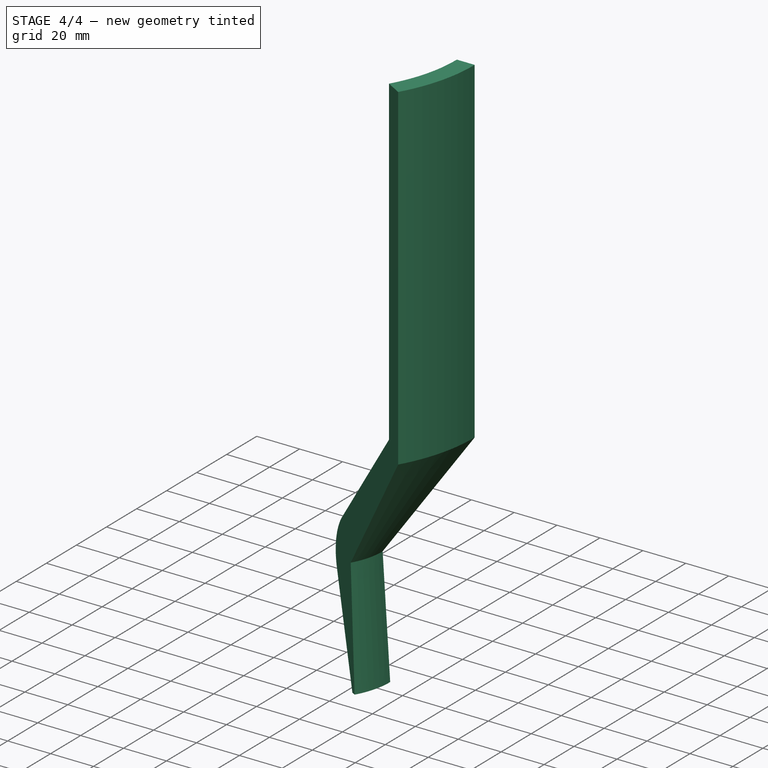
[diagram: stage 4 of 4 — iso view after this stage's code; geometry added in this stage tinted green]
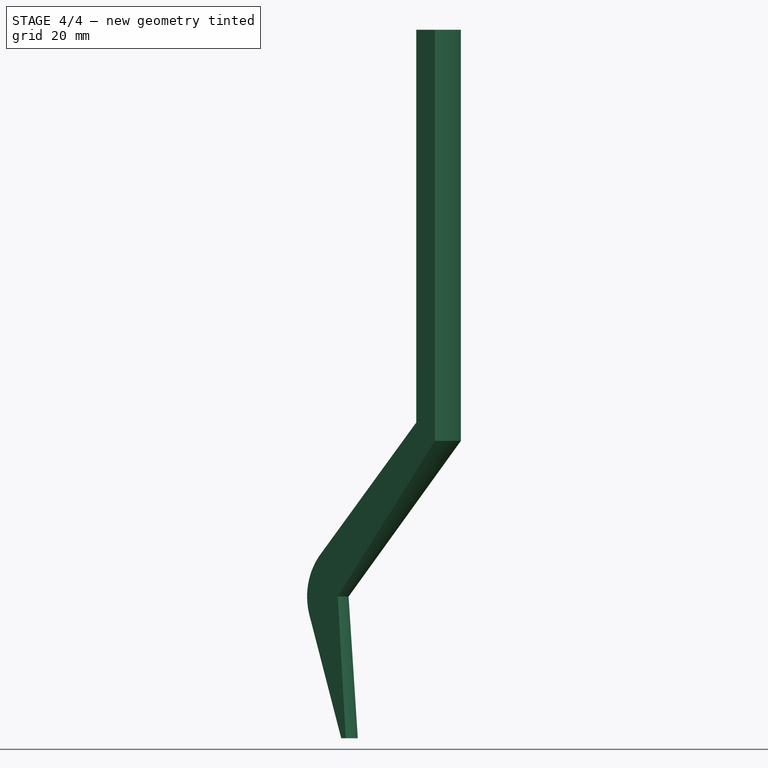
[diagram: stage 4 of 4 — front view after this stage's code; geometry added in this stage tinted green]
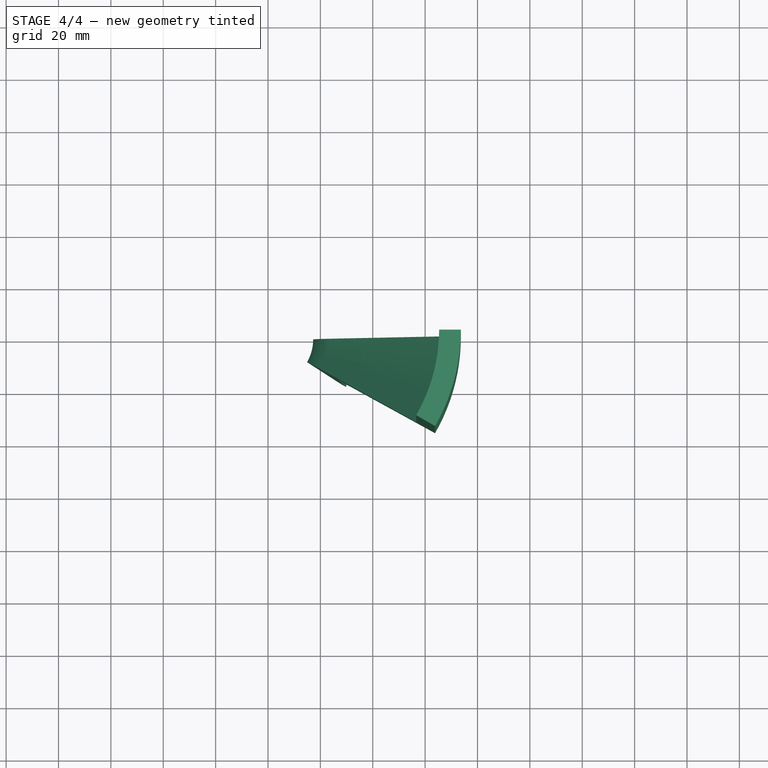
[diagram: stage 4 of 4 — top view after this stage's code; geometry added in this stage tinted green]
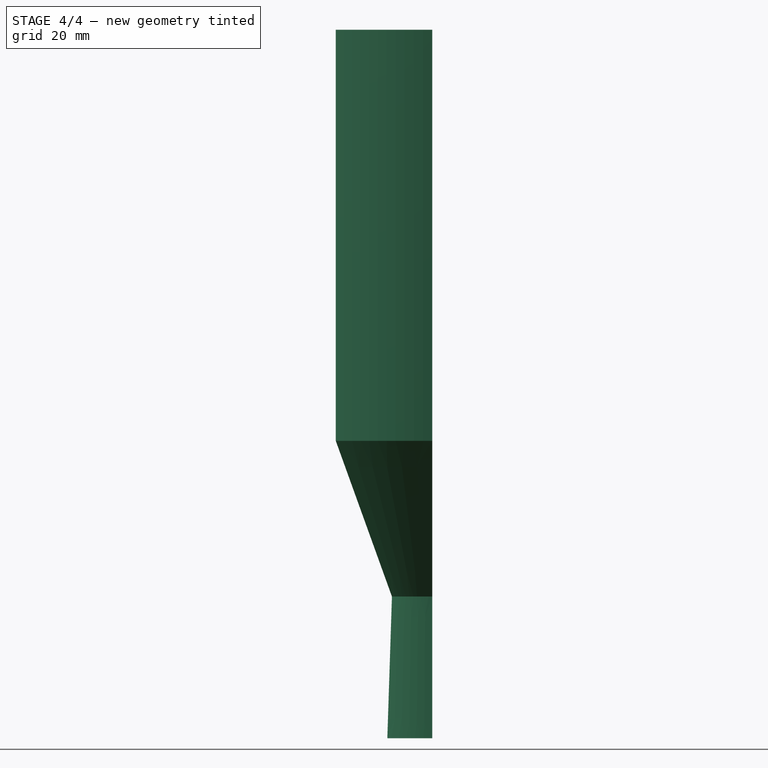
[diagram: stage 4 of 4 — right view after this stage's code; geometry added in this stage tinted green]
FEATURE [PartDesign::Plane] DatumPlane001
  AttachmentOffset = pos=(0,0,0) rot=(0,-1,0;0.316023rad)
  AttachmentSupport = -> [XZ_Plane]
  Length = 149.53
  MapMode = 5
  Placement = pos=(0,0,0) rot=(0.975539,-0.155442,-0.155442;1.59556rad)
  ResizeMode = 0
  Width = 332.097
  expr: .AttachmentOffset.Rotation.Pitch = -(Spreadsheet.C15 + Spreadsheet.C15 / 2 + Spreadsheet.C16)
FEATURE [Sketcher::SketchObject] Sketch002
  ArcFitTolerance = 1e-06
  AttachmentSupport = -> [DatumPlane001]
  FullyConstrained = false
  MakeInternals = false
  MapMode = 5
  Placement = pos=(0,0,0) rot=(0.975539,-0.155442,-0.155442;1.59556rad)
  expr: Constraints[12] = 50 - 2 * (Spreadsheet.C10 - Spreadsheet.C9)
  expr: Constraints[13] = Spreadsheet.C11
  expr: Constraints[14] = Spreadsheet.C4
  expr: Constraints[15] = Spreadsheet.C3
  expr: Constraints[20] = Spreadsheet.C10
  expr: Constraints[22] = Spreadsheet.C5
  expr: Constraints[32] = Spreadsheet.C9
  sketch-geometry (14):
    g0: ArcOfCircle CenterX=42.2423 CenterY=54.12 CenterZ=0 NormalX=0 NormalY=0 NormalZ=1 AngleXU=0 Radius=23.8 StartAngle=2.49544 EndAngle=3.14159
    g1: LineSegment StartX=23.2402 StartY=68.4503 StartZ=0 EndX=66.8881 EndY=126.328 EndZ=0
    g2: LineSegment StartX=66.8881 StartY=126.328 StartZ=0 EndX=66.8881 EndY=333 EndZ=0
    g3: LineSegment StartX=66.8881 StartY=333 StartZ=0 EndX=70.7638 EndY=333 EndZ=0
    g4: LineSegment StartX=70.7638 StartY=333 StartZ=0 EndX=70.7638 EndY=123.405 EndZ=0
    g5: LineSegment StartX=70.7638 StartY=123.405 StartZ=0 EndX=29.5569 EndY=54.12 EndZ=0
    g6: LineSegment [constr] StartX=66.8881 StartY=126.328 StartZ=0 EndX=70.7638 EndY=123.405 EndZ=0
    g7: LineSegment StartX=29.5569 StartY=54.12 StartZ=0 EndX=18.4423 EndY=54.12 EndZ=0
    g8: LineSegment [constr] StartX=65.3481 StartY=277.62 StartZ=0 EndX=65.3481 EndY=127.62 EndZ=0
    g9: LineSegment [constr] StartX=65.3481 StartY=127.62 StartZ=0 EndX=48.5294 EndY=107.576 EndZ=0
    g10: LineSegment [constr] StartX=65.3481 StartY=127.62 StartZ=0 EndX=86.376 EndY=109.975 EndZ=0
    g11: ArcOfCircle [constr] CenterX=42.2423 CenterY=54.12 CenterZ=0 NormalX=0 NormalY=0 NormalZ=1 AngleXU=0 Radius=25 StartAngle=2.49544 EndAngle=8.46754
    g12: LineSegment [constr] StartX=23.2402 StartY=68.4503 StartZ=0 EndX=22.2821 EndY=69.1729 EndZ=0
    g13: LineSegment [constr] StartX=18.4423 StartY=54.12 StartZ=0 EndX=17.2423 EndY=54.12 EndZ=0
  constraints (41):
    c: Coincident(g2,g1)
    c: Vertical(g2)
    c: Coincident(g3,g2)
    c: Horizontal(g3)
    c: Coincident(g4,g3)
    c: Vertical(g4)
    c: Coincident(g5,g4)
    c: Coincident(g6,g1)
    c: Perpendicular(g1,g6)
    c: Coincident(g6,g4)
    c: DistanceY(g-1,g0) = 54.12
    c: DistanceY(g-1,g5) = 54.12
    c: Diameter(g0) = 47.6
    c: DistanceX(g-1,g5) = 29.5569
    c: Distance(g-2,g2) = 66.8881
    c: Distance(g-2,g4) = 70.7638
    c: Coincident(g7,g5)
    c: Horizontal(g7)
    c: Coincident(g0,g7)
    c: Tangent(g0,g1) = 1.5708
    c: Distance(g0,g-2) = 18.4423
    c: Vertical(g8)
    c: Distance(g-2,g8) = 65.3481
    c: DistanceY(g-1,g8) = 277.62
    c: DistanceY(g8,g8) = 150
    c: Distance(g-1,g3) = 333
    c: Coincident(g9,g8)
    c: Angle(g9,g-2) = 0.698132
    c: Coincident(g10,g8)
    c: Perpendicular(g10,g9)
    c: PointOnObject(g1,g10)
    c: DistanceY(g-1,g11) = 54.12
    c: Distance(g11,g-2) = 17.2423
    c: Diameter(g11) = 50
    c: Coincident(g12,g0)
    c: Perpendicular(g12,g1)
    c: PointOnObject(g11,g1)
    c: Coincident(g12,g11)
    c: Coincident(g13,g0)
    c: Horizontal(g13)
    c: PointOnObject(g13,g11)
FEATURE [PartDesign::Groove] Groove001
  Angle = 8.78649
  Angle2 = 60
  Axis = (0,0,1)
  Base = (0,0,0)
  BaseFeature = -> Groove
  Placement = pos=(0,0,0) rot=(1,0,0;1.5708rad)
  Profile = -> Sketch002
  ReferenceAxis = -> Sketch002 [V_Axis]
  Refine = true
  Reversed = true
  Suppressed = false
  Type = 0
  expr: Angle = Spreadsheet.C17
FEATURE [Sketcher::SketchObject] Sketch004
  ArcFitTolerance = 1e-06
  AttachmentSupport = -> [DatumPlane001]
  FullyConstrained = false
  MakeInternals = false
  MapMode = 5
  Placement = pos=(0,0,0) rot=(0.975539,-0.155442,-0.155442;1.59556rad)
  expr: Constraints[0] = 50 - 2 * (Spreadsheet.C10 - Spreadsheet.C9)
  expr: Constraints[12] = Spreadsheet.C3
  expr: Constraints[13] = Spreadsheet.C10
  expr: Constraints[21] = Spreadsheet.C3
  expr: Constraints[22] = Spreadsheet.C4
  expr: Constraints[28] = Spreadsheet.C19
  expr: Constraints[3] = Spreadsheet.C11
  expr: Constraints[9] = Spreadsheet.C5
  sketch-geometry (9):
    g0: ArcOfCircle CenterX=42.2423 CenterY=54.12 CenterZ=0 NormalX=0 NormalY=0 NormalZ=1 AngleXU=0 Radius=23.8 StartAngle=2.9075 EndAngle=3.14159
    g1: LineSegment StartX=29.5569 StartY=54.12 StartZ=0 EndX=32.8559 EndY=59.6406 EndZ=0
    g2: LineSegment [constr] StartX=65.3481 StartY=277.62 StartZ=0 EndX=65.3481 EndY=127.62 EndZ=0
    g3: LineSegment [constr] StartX=65.3481 StartY=127.62 StartZ=0 EndX=47.0094 EndY=105.765 EndZ=0
    g4: LineSegment [constr] StartX=65.3481 StartY=127.62 StartZ=0 EndX=70.7638 EndY=123.076 EndZ=0
    g5: LineSegment StartX=29.5569 StartY=54.12 StartZ=0 EndX=18.4423 EndY=54.12 EndZ=0
    g6: LineSegment [constr] StartX=16.6753 StartY=59.7453 StartZ=0 EndX=66.8881 EndY=126.328 EndZ=0
    g7: LineSegment [constr] StartX=70.7638 StartY=123.076 StartZ=0 EndX=29.5569 EndY=54.12 EndZ=0
    g8: LineSegment StartX=19.0914 StartY=59.6406 StartZ=0 EndX=32.8559 EndY=59.6406 EndZ=0
  constraints (29):
    c: Diameter(g0) = 47.6
    c: DistanceY(g-1,g0) = 54.12
    c: DistanceY(g-1,g1) = 54.12
    c: Distance(g1,g-2) = 29.5569
    c: Vertical(g2)
    c: Coincident(g3,g2)
    c: DistanceY(g-1,g2) = 277.62
    c: DistanceY(g2,g2) = 150
    c: Angle(g3,g-2) = 0.698132
    c: Distance(g-2,g2) = 65.3481
    c: Coincident(g4,g2)
    c: Perpendicular(g3,g4)
    c: Distance(g4,g-2) = 70.7638
    c: Distance(g0,g-2) = 18.4423
    c: Coincident(g5,g1)
    c: Coincident(g5,g0)
    c: Horizontal(g5)
    c: Distance(g3,g3) = 28.53
    c: PointOnObject(g6,g4)
    c: PointOnObject(g7,g4)
    c: Coincident(g7,g1)
    c: DistanceX(g-1,g7) = 70.7638
    c: DistanceX(g-1,g6) = 66.8881
    c: Tangent(g0,g6)
    c: Parallel(g7,g1)
    c: Horizontal(g8)
    c: Coincident(g8,g1)
    c: Coincident(g8,g0)
    c: Distance(g5,g8) = 5.52062
FEATURE [PartDesign::Groove] Groove002
  Angle = 6.21351
  Angle2 = 60
  Axis = (0,0,1)
  Base = (0,0,0)
  BaseFeature = -> Groove001
  Placement = pos=(0,0,0) rot=(1,0,0;1.5708rad)
  Profile = -> Sketch004
  ReferenceAxis = -> Sketch004 [V_Axis]
  Refine = true
  Suppressed = false
  Type = 0
  expr: Angle = Spreadsheet.C15
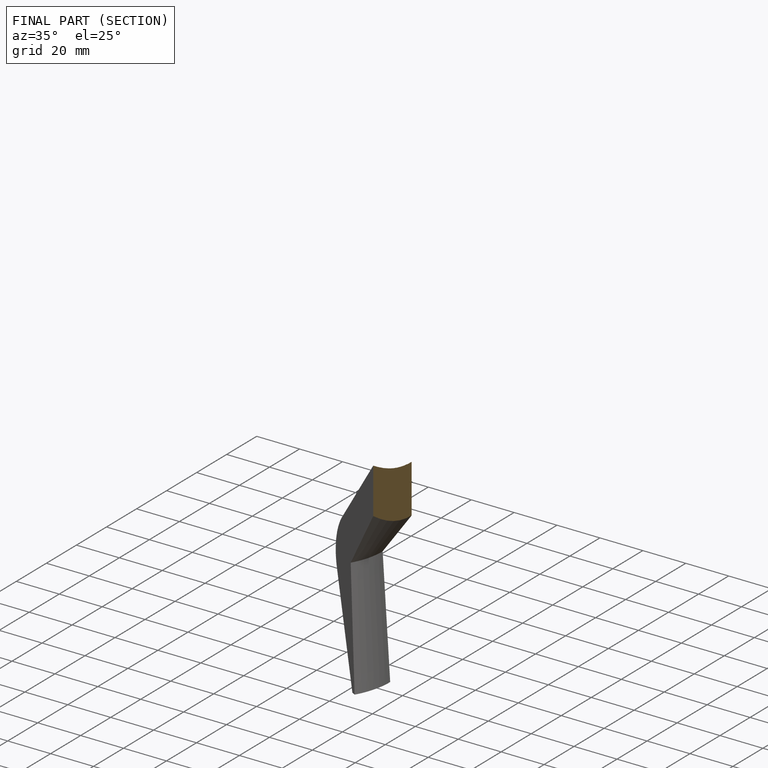
[diagram: finished part — half-section view (interior)]
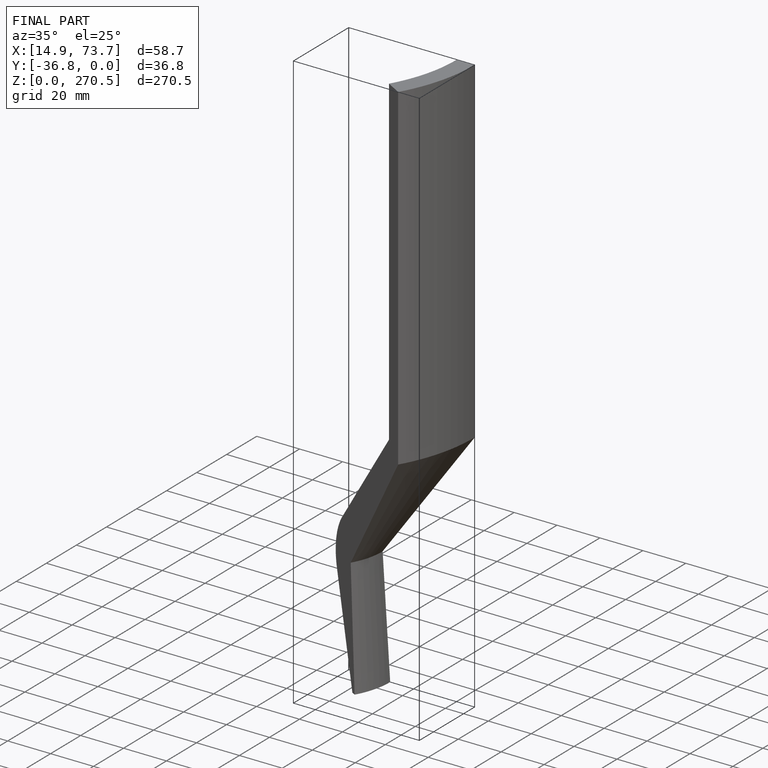
[diagram: finished part — iso view with bounding-box wireframe]
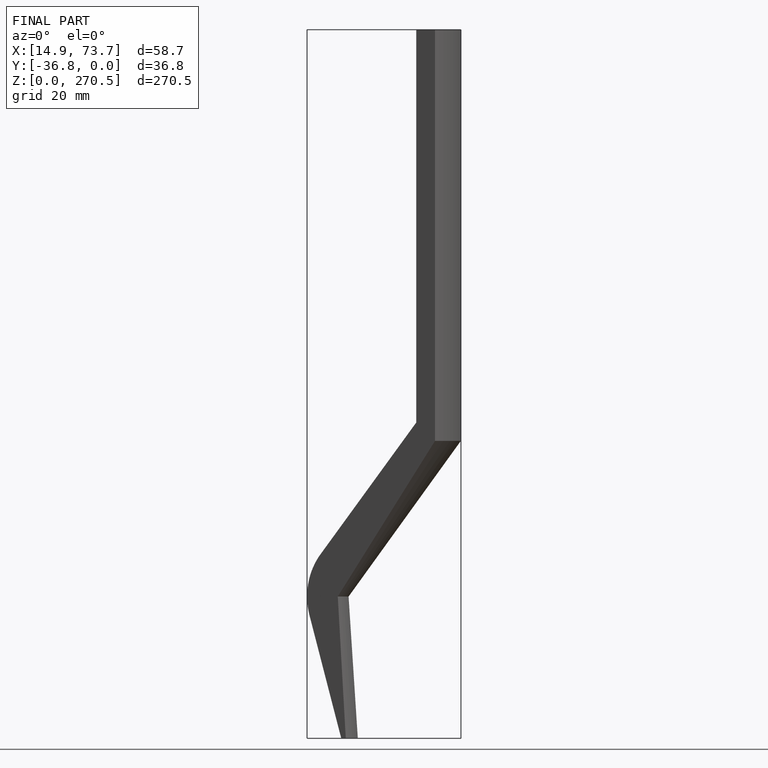
[diagram: finished part — front view with bounding-box wireframe]
